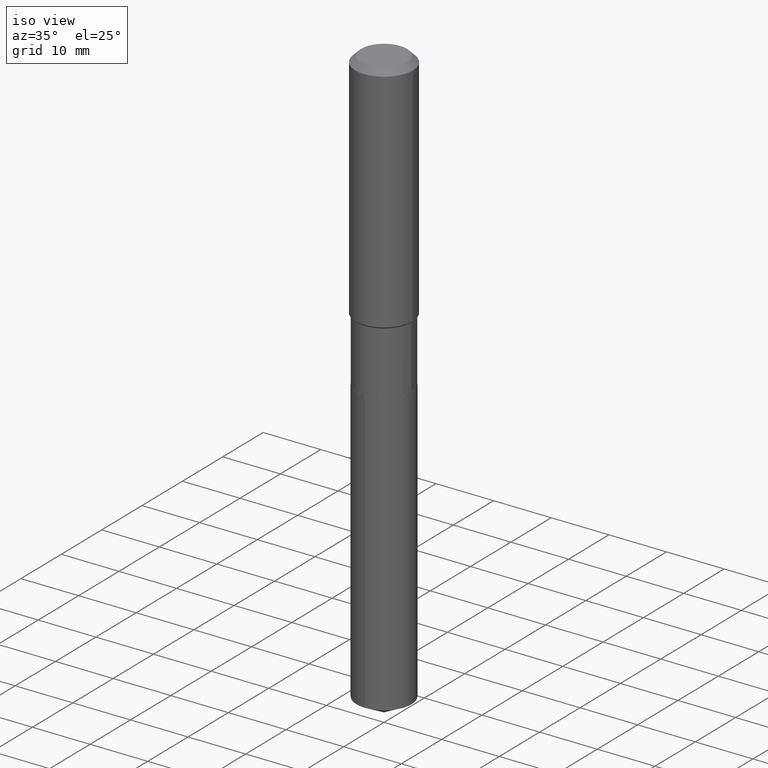
[diagram: clean part render]
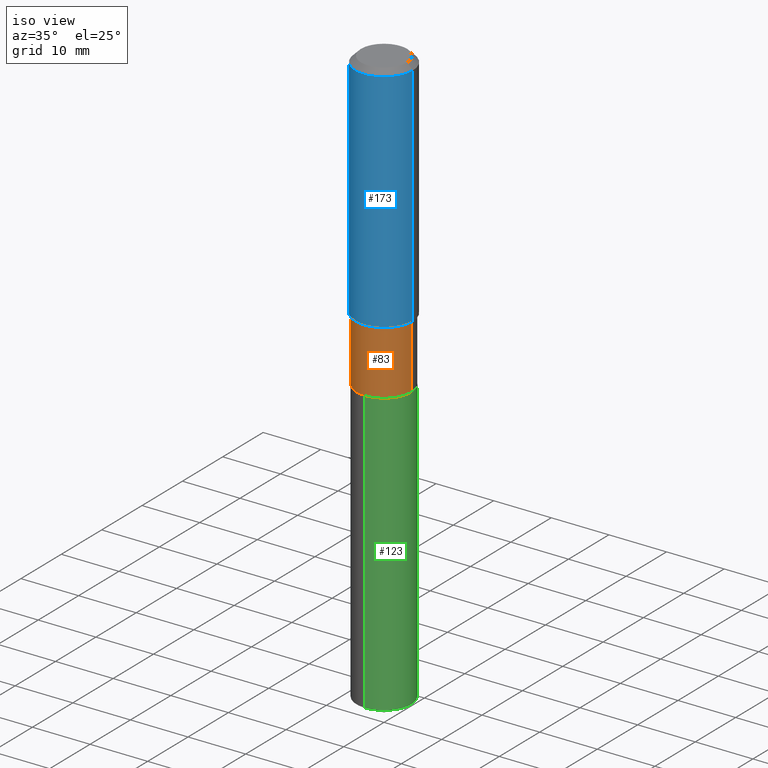
[diagram: same view with three faces highlighted in distinct colors, each labeled with its STEP entity id]
A machine part, iso view with three faces highlighted in distinct colors.
Their STEP definitions:

[orange] entity #83 — the highlighted cylindrical surface (edge-blend (fillet) strip) has radius 4.7625 mm, axis along (-0, 0, 1).
#7 = VERTEX_POINT ( 'NONE', #287 ) ;
#14 = VERTEX_POINT ( 'NONE', #444 ) ;
#59 = DIRECTION ( 'NONE',  ( 1.000000000000000000, -6.982962677686266711E-15, 0.000000000000000000 ) ) ;
#77 = DIRECTION ( 'NONE',  ( -2.445468806185136597E-29, 3.491481338843145583E-15, 1.000000000000000000 ) ) ;
#78 = ORIENTED_EDGE ( 'NONE', *, *, #137, .T. ) ;
#83 = ADVANCED_FACE ( 'NONE', ( #167 ), #210, .T. ) ;
#117 = AXIS2_PLACEMENT_3D ( 'NONE', #315, #362, #139 ) ;
#121 = EDGE_LOOP ( 'NONE', ( #429, #386, #78, #411 ) ) ;
#137 = EDGE_CURVE ( 'NONE', #14, #261, #476, .T. ) ;
#139 = DIRECTION ( 'NONE',  ( 1.000000000000000000, -6.982962677686266711E-15, 4.876176775795935793E-29 ) ) ;
#147 = DIRECTION ( 'NONE',  ( -2.445468806185136877E-29, 3.491481338843145188E-15, 1.000000000000000000 ) ) ;
#152 = DIRECTION ( 'NONE',  ( 1.000000000000000000, -6.982962677686264344E-15, 0.000000000000000000 ) ) ;
#165 = VERTEX_POINT ( 'NONE', #454 ) ;
#167 = FACE_OUTER_BOUND ( 'NONE', #121, .T. ) ;
#187 = VECTOR ( 'NONE', #338, 39.37007874015748143 ) ;
#210 = CYLINDRICAL_SURFACE ( 'NONE', #117, 0.1874999999999999722 ) ;
#222 = CARTESIAN_POINT ( 'NONE',  ( 0.1874999999999999722, -1.309305502066174811E-15, 9.142831454617378210E-30 ) ) ;
#242 = EDGE_CURVE ( 'NONE', #7, #261, #447, .T. ) ;
#259 = EDGE_CURVE ( 'NONE', #165, #7, #381, .T. ) ;
#261 = VERTEX_POINT ( 'NONE', #263 ) ;
#263 = CARTESIAN_POINT ( 'NONE',  ( 0.1874999999999999445, -6.884153755797024597E-15, -1.596700000000000008 ) ) ;
#287 = CARTESIAN_POINT ( 'NONE',  ( -0.1874999999999999445, -4.994645704567475454E-15, -1.596700000000000008 ) ) ;
#308 = CARTESIAN_POINT ( 'NONE',  ( -0.1874999999999999722, 1.332267629550187651E-15, -9.223003294227946589E-30 ) ) ;
#311 = CARTESIAN_POINT ( 'NONE',  ( 4.958188004540363822E-29, -7.078978414504476228E-15, -2.027499999999999414 ) ) ;
#315 = CARTESIAN_POINT ( 'NONE',  ( 0.000000000000000000, 0.000000000000000000, 0.000000000000000000 ) ) ;
#338 = DIRECTION ( 'NONE',  ( -2.445468806185136877E-29, 3.491481338843145188E-15, 1.000000000000000000 ) ) ;
#362 = DIRECTION ( 'NONE',  ( -2.445468806185136597E-29, 3.491481338843145583E-15, 1.000000000000000000 ) ) ;
#378 = CARTESIAN_POINT ( 'NONE',  ( 3.904680042835807186E-29, -5.574848253730850378E-15, -1.596700000000000008 ) ) ;
#381 = LINE ( 'NONE', #308, #187 ) ;
#386 = ORIENTED_EDGE ( 'NONE', *, *, #418, .T. ) ;
#389 = VECTOR ( 'NONE', #147, 39.37007874015748143 ) ;
#402 = AXIS2_PLACEMENT_3D ( 'NONE', #378, #77, #152 ) ;
#411 = ORIENTED_EDGE ( 'NONE', *, *, #242, .F. ) ;
#418 = EDGE_CURVE ( 'NONE', #165, #14, #478, .T. ) ;
#429 = ORIENTED_EDGE ( 'NONE', *, *, #259, .F. ) ;
#444 = CARTESIAN_POINT ( 'NONE',  ( 0.1875000000000000278, -8.388283916570652025E-15, -2.027499999999999414 ) ) ;
#447 = CIRCLE ( 'NONE', #402, 0.1874999999999999445 ) ;
#454 = CARTESIAN_POINT ( 'NONE',  ( -0.1875000000000000278, -4.994645704567475454E-15, -2.027499999999999414 ) ) ;
#469 = DIRECTION ( 'NONE',  ( -2.445468806185136597E-29, 3.491481338843145583E-15, 1.000000000000000000 ) ) ;
#476 = LINE ( 'NONE', #222, #389 ) ;
#478 = CIRCLE ( 'NONE', #486, 0.1875000000000000278 ) ;
#486 = AXIS2_PLACEMENT_3D ( 'NONE', #311, #469, #59 ) ;

[blue] entity #173 — the highlighted cylindrical surface (edge-blend (fillet) strip) has radius 5 mm, axis along (-0, 0, 1).
#36 = EDGE_CURVE ( 'NONE', #464, #312, #103, .T. ) ;
#43 = VECTOR ( 'NONE', #86, 39.37007874015748143 ) ;
#49 = CARTESIAN_POINT ( 'NONE',  ( 0.1968500000000001082, -1.374596203102542397E-15, 9.598753983154305062E-30 ) ) ;
#74 = DIRECTION ( 'NONE',  ( 1.000000000000000000, -6.982962677686266711E-15, 4.876176775795935793E-29 ) ) ;
#86 = DIRECTION ( 'NONE',  ( -2.445468806185136877E-29, 3.491481338843145188E-15, 1.000000000000000000 ) ) ;
#92 = CARTESIAN_POINT ( 'NONE',  ( -0.1968500000000001082, 1.398703375343757985E-15, -9.682923725166787881E-30 ) ) ;
#95 = CARTESIAN_POINT ( 'NONE',  ( -0.1968500000000000250, -1.441127886417702753E-15, -0.03937000000000029365 ) ) ;
#103 = CIRCLE ( 'NONE', #373, 0.1968500000000000250 ) ;
#109 = CYLINDRICAL_SURFACE ( 'NONE', #341, 0.1968500000000001082 ) ;
#120 = LINE ( 'NONE', #49, #43 ) ;
#128 = ORIENTED_EDGE ( 'NONE', *, *, #258, .T. ) ;
#133 = VERTEX_POINT ( 'NONE', #207 ) ;
#149 = CIRCLE ( 'NONE', #453, 0.1968500000000002192 ) ;
#158 = VERTEX_POINT ( 'NONE', #295 ) ;
#160 = ORIENTED_EDGE ( 'NONE', *, *, #380, .F. ) ;
#173 = ADVANCED_FACE ( 'NONE', ( #189 ), #109, .T. ) ;
#189 = FACE_OUTER_BOUND ( 'NONE', #462, .T. ) ;
#203 = DIRECTION ( 'NONE',  ( -2.445468806185136877E-29, 3.491481338843145188E-15, 1.000000000000000000 ) ) ;
#207 = CARTESIAN_POINT ( 'NONE',  ( -0.1968500000000002192, -4.143499527868906923E-15, -1.587349999999999595 ) ) ;
#224 = CARTESIAN_POINT ( 'NONE',  ( 0.1968500000000000250, -1.512055823412797189E-15, -0.03937000000000029365 ) ) ;
#237 = DIRECTION ( 'NONE',  ( 1.000000000000000000, -6.982962677686265922E-15, 0.000000000000000000 ) ) ;
#258 = EDGE_CURVE ( 'NONE', #158, #312, #120, .T. ) ;
#295 = CARTESIAN_POINT ( 'NONE',  ( 0.1968500000000002192, -6.916799106315208686E-15, -1.587349999999999595 ) ) ;
#312 = VERTEX_POINT ( 'NONE', #224 ) ;
#321 = LINE ( 'NONE', #92, #370 ) ;
#330 = DIRECTION ( 'NONE',  ( -2.445468806185136597E-29, 3.491481338843145583E-15, 1.000000000000000000 ) ) ;
#341 = AXIS2_PLACEMENT_3D ( 'NONE', #450, #330, #74 ) ;
#350 = ORIENTED_EDGE ( 'NONE', *, *, #439, .T. ) ;
#366 = DIRECTION ( 'NONE',  ( 1.000000000000000000, -6.982962677686265922E-15, 0.000000000000000000 ) ) ;
#370 = VECTOR ( 'NONE', #203, 39.37007874015748143 ) ;
#373 = AXIS2_PLACEMENT_3D ( 'NONE', #405, #388, #366 ) ;
#380 = EDGE_CURVE ( 'NONE', #133, #464, #321, .T. ) ;
#388 = DIRECTION ( 'NONE',  ( -2.445468806185136597E-29, 3.491481338843145583E-15, 1.000000000000000000 ) ) ;
#405 = CARTESIAN_POINT ( 'NONE',  ( 9.627810689950954155E-31, -1.374596203102556547E-16, -0.03937000000000029365 ) ) ;
#428 = DIRECTION ( 'NONE',  ( -2.445468806185136597E-29, 3.491481338843145583E-15, 1.000000000000000000 ) ) ;
#439 = EDGE_CURVE ( 'NONE', #133, #158, #149, .T. ) ;
#441 = CARTESIAN_POINT ( 'NONE',  ( 3.881814909497976059E-29, -5.542202903212666289E-15, -1.587349999999999595 ) ) ;
#449 = ORIENTED_EDGE ( 'NONE', *, *, #36, .F. ) ;
#450 = CARTESIAN_POINT ( 'NONE',  ( 0.000000000000000000, 0.000000000000000000, 0.000000000000000000 ) ) ;
#453 = AXIS2_PLACEMENT_3D ( 'NONE', #441, #428, #237 ) ;
#462 = EDGE_LOOP ( 'NONE', ( #160, #350, #128, #449 ) ) ;
#464 = VERTEX_POINT ( 'NONE', #95 ) ;

[green] entity #123 — the highlighted cylindrical surface (edge-blend (fillet) strip) has radius 4.7625 mm, axis along (-0, 0, 1).
#8 = VECTOR ( 'NONE', #127, 39.37007874015748143 ) ;
#15 = EDGE_CURVE ( 'NONE', #122, #451, #369, .T. ) ;
#18 = ORIENTED_EDGE ( 'NONE', *, *, #214, .F. ) ;
#26 = CARTESIAN_POINT ( 'NONE',  ( 4.959410738943456063E-29, -7.080724155173897732E-15, -2.027999999999999581 ) ) ;
#29 = CYLINDRICAL_SURFACE ( 'NONE', #184, 0.1875000000000000278 ) ;
#35 = AXIS2_PLACEMENT_3D ( 'NONE', #431, #392, #355 ) ;
#51 = CARTESIAN_POINT ( 'NONE',  ( -1.309305502066077978E-15, -0.1875000000000137668, -3.955304481563473029 ) ) ;
#81 = VERTEX_POINT ( 'NONE', #354 ) ;
#96 = DIRECTION ( 'NONE',  ( -6.982962677686265922E-15, -1.000000000000000000, 2.913971193241880372E-15 ) ) ;
#122 = VERTEX_POINT ( 'NONE', #170 ) ;
#123 = ADVANCED_FACE ( 'NONE', ( #281 ), #29, .T. ) ;
#127 = DIRECTION ( 'NONE',  ( -2.445465762291541811E-29, 3.491485697872021130E-15, 1.000000000000000000 ) ) ;
#166 = LINE ( 'NONE', #250, #8 ) ;
#170 = CARTESIAN_POINT ( 'NONE',  ( -1.309305502066125507E-15, -0.1875000000000070777, -2.027999999999999137 ) ) ;
#178 = CARTESIAN_POINT ( 'NONE',  ( 4.959410738943456063E-29, -7.080724155173897732E-15, -2.027999999999999581 ) ) ;
#184 = AXIS2_PLACEMENT_3D ( 'NONE', #178, #324, #96 ) ;
#185 = CARTESIAN_POINT ( 'NONE',  ( -1.309305502066125507E-15, -0.1875000000000070777, -2.027999999999999137 ) ) ;
#214 = EDGE_CURVE ( 'NONE', #385, #122, #296, .T. ) ;
#229 = VECTOR ( 'NONE', #332, 39.37007874015748143 ) ;
#230 = CIRCLE ( 'NONE', #35, 0.1875000000000000278 ) ;
#250 = CARTESIAN_POINT ( 'NONE',  ( 1.332267629550237152E-15, 0.1874999999999929501, -2.028000000000000025 ) ) ;
#267 = ORIENTED_EDGE ( 'NONE', *, *, #15, .F. ) ;
#281 = FACE_OUTER_BOUND ( 'NONE', #293, .T. ) ;
#293 = EDGE_LOOP ( 'NONE', ( #334, #348, #267, #18 ) ) ;
#296 = LINE ( 'NONE', #185, #229 ) ;
#314 = CARTESIAN_POINT ( 'NONE',  ( 1.332267629550284681E-15, 0.1874999999999929501, -2.028000000000000025 ) ) ;
#318 = DIRECTION ( 'NONE',  ( -2.445465762291541811E-29, 3.491485697872021130E-15, 1.000000000000000000 ) ) ;
#324 = DIRECTION ( 'NONE',  ( -2.445465762291541811E-29, 3.491485697872021130E-15, 1.000000000000000000 ) ) ;
#332 = DIRECTION ( 'NONE',  ( -2.445465762291541811E-29, 3.491485697872021130E-15, 1.000000000000000000 ) ) ;
#334 = ORIENTED_EDGE ( 'NONE', *, *, #457, .T. ) ;
#348 = ORIENTED_EDGE ( 'NONE', *, *, #361, .T. ) ;
#354 = CARTESIAN_POINT ( 'NONE',  ( 1.332267629550284287E-15, 0.1874999999999861777, -3.955304481563474361 ) ) ;
#355 = DIRECTION ( 'NONE',  ( -6.982962677686265922E-15, -1.000000000000000000, 2.913971193241880372E-15 ) ) ;
#361 = EDGE_CURVE ( 'NONE', #81, #451, #166, .T. ) ;
#369 = CIRCLE ( 'NONE', #433, 0.1875000000000000278 ) ;
#385 = VERTEX_POINT ( 'NONE', #51 ) ;
#392 = DIRECTION ( 'NONE',  ( -2.445465762291541811E-29, 3.491485697872021130E-15, 1.000000000000000000 ) ) ;
#397 = DIRECTION ( 'NONE',  ( -6.982962677686265922E-15, -1.000000000000000000, 2.913971193241880372E-15 ) ) ;
#431 = CARTESIAN_POINT ( 'NONE',  ( 9.672567862117980810E-29, -1.380988018799741767E-14, -3.955304481563473473 ) ) ;
#433 = AXIS2_PLACEMENT_3D ( 'NONE', #26, #318, #397 ) ;
#451 = VERTEX_POINT ( 'NONE', #314 ) ;
#457 = EDGE_CURVE ( 'NONE', #385, #81, #230, .T. ) ;